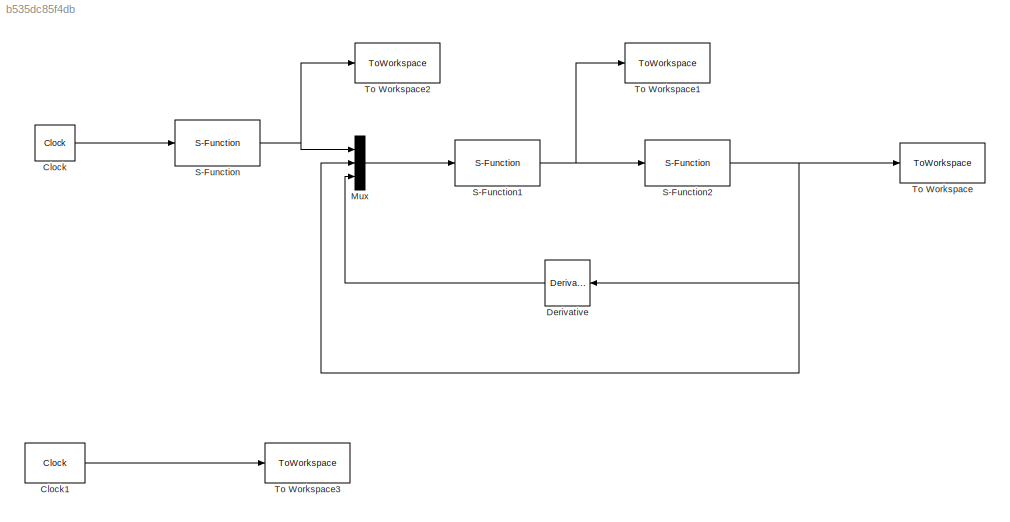
MODEL slx_b535dc85f4db
KIND model
BLOCK [Clock] Clock
BLOCK [Clock] Clock1
  Decimation = 1
  DisplayTime = on
BLOCK [Derivative] Derivative
BLOCK [Mux] Mux
  DisplayOption = bar
  Inputs = 3
  Ports = [3, 1]
BLOCK [S-Function] S-Function
  EnableBusSupport = off
  FunctionName = SP_yaw_input
  Ports = [1, 1]
BLOCK [S-Function] S-Function1
  EnableBusSupport = off
  FunctionName = SP_yaw_s
  Ports = [1, 1]
BLOCK [S-Function] S-Function2
  EnableBusSupport = off
  FunctionName = SP_yaw_plant
  Ports = [1, 1]
BLOCK [ToWorkspace] To Workspace
  MaxDataPoints = inf
  Ports = [1]
  SampleTime = -1
  VariableName = x
BLOCK [ToWorkspace] To Workspace1
  MaxDataPoints = inf
  Ports = [1]
  SampleTime = -1
  VariableName = u
BLOCK [ToWorkspace] To Workspace2
  MaxDataPoints = inf
  Ports = [1]
  SampleTime = -1
  VariableName = r
BLOCK [ToWorkspace] To Workspace3
  MaxDataPoints = inf
  Ports = [1]
  SampleTime = -1
  VariableName = t
LINE Clock1:1 -> To Workspace3:1
LINE Clock:1 -> S-Function:1
LINE Derivative:1 -> Mux:3
LINE Mux:1 -> S-Function1:1
NET S-Function1:1 -> S-Function2:1, To Workspace1:1
NET S-Function2:1 -> Derivative:1, Mux:2, To Workspace:1
NET S-Function:1 -> Mux:1, To Workspace2:1
note: NET lines group one-source signal fan-out (src -> all destinations, sorted); 1:1 wires keep LINE
